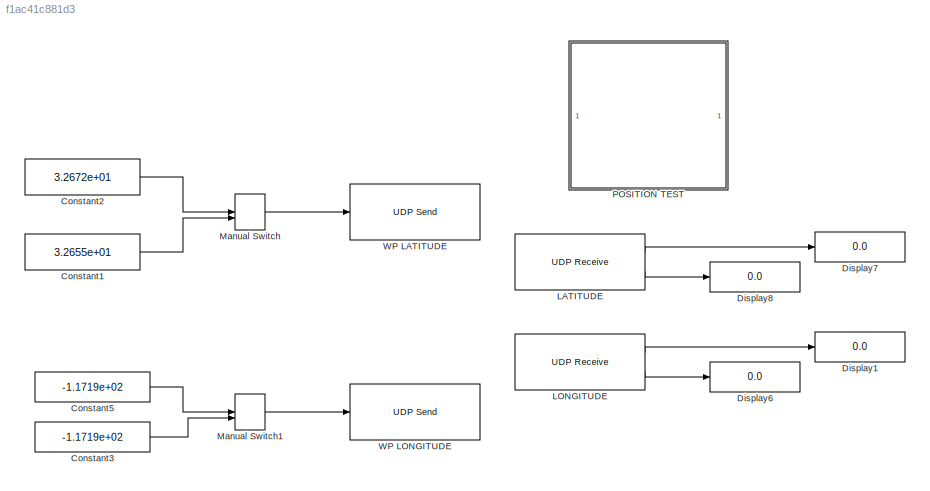
MODEL slx_f1ac41c881d3
KIND model
CONFIG AbsTol = auto
CONFIG EnableMultiTasking = off
CONFIG FixedStep = auto
CONFIG MaxStep = auto
CONFIG MinStep = auto
CONFIG RelTol = 1e-3
CONFIG SampleTimeConstraint = Unconstrained
CONFIG SolverName = VariableStepAuto
CONFIG StartTime = 0.0
CONFIG StopTime = inf
BLOCK [Constant] Constant1
  SampleTime = 0.03
  Value = 3.2655e+01
BLOCK [Constant] Constant2
  SampleTime = 0.03
  Value = 3.2672e+01
BLOCK [Constant] Constant3
  SampleTime = 0.03
  Value = -1.1719e+02
BLOCK [Constant] Constant5
  SampleTime = 0.03
  Value = -1.1719e+02
BLOCK [Display] Display1
  Decimation = 1
  Ports = [1]
BLOCK [Display] Display6
  Decimation = 1
  Ports = [1]
BLOCK [Display] Display7
  Decimation = 1
  Ports = [1]
BLOCK [Display] Display8
  Decimation = 1
  Ports = [1]
BLOCK [Reference] LATITUDE  REF=instrumentlib/UDP Receive
  Ports = [0, 2]
  SourceBlock = instrumentlib/UDP Receive
  SourceProductBaseCode = IC
  SourceType = UDP Receive
BLOCK [Reference] LONGITUDE  REF=instrumentlib/UDP Receive
  Ports = [0, 2]
  SourceBlock = instrumentlib/UDP Receive
  SourceProductBaseCode = IC
  SourceType = UDP Receive
BLOCK [ManualSwitch] Manual Switch
BLOCK [ManualSwitch] Manual Switch1
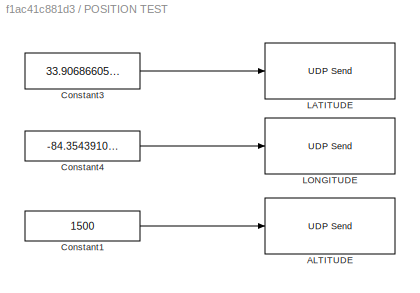
BLOCK [SubSystem] POSITION TEST
  Commented = on
  Ports = []
  RequestExecContextInheritance = off
BLOCK [Reference] POSITION TEST/ALTITUDE  REF=instrumentlib/UDP Send
  Ports = [1]
  SourceBlock = instrumentlib/UDP Send
  SourceProductBaseCode = IC
  SourceType = UDP Send
BLOCK [Constant] POSITION TEST/Constant1
  SampleTime = 0.01
  Value = 1500
BLOCK [Constant] POSITION TEST/Constant3
  SampleTime = 0.01
  Value = 33.906866054481476
BLOCK [Constant] POSITION TEST/Constant4
  SampleTime = 0.01
  Value = -84.35439102319383
BLOCK [Reference] POSITION TEST/LATITUDE  REF=instrumentlib/UDP Send
  Ports = [1]
  SourceBlock = instrumentlib/UDP Send
  SourceProductBaseCode = IC
  SourceType = UDP Send
BLOCK [Reference] POSITION TEST/LONGITUDE  REF=instrumentlib/UDP Send
  Ports = [1]
  SourceBlock = instrumentlib/UDP Send
  SourceProductBaseCode = IC
  SourceType = UDP Send
BLOCK [Reference] WP LATITUDE  REF=instrumentlib/UDP Send
  Ports = [1]
  SourceBlock = instrumentlib/UDP Send
  SourceProductBaseCode = IC
  SourceType = UDP Send
BLOCK [Reference] WP LONGITUDE  REF=instrumentlib/UDP Send
  Ports = [1]
  SourceBlock = instrumentlib/UDP Send
  SourceProductBaseCode = IC
  SourceType = UDP Send
LINE Constant1:1 -> Manual Switch:2
LINE Constant2:1 -> Manual Switch:1
LINE Constant3:1 -> Manual Switch1:2
LINE Constant5:1 -> Manual Switch1:1
LINE LATITUDE:1 -> Display7:1
LINE LATITUDE:2 -> Display8:1
LINE LONGITUDE:1 -> Display1:1
LINE LONGITUDE:2 -> Display6:1
LINE Manual Switch1:1 -> WP LONGITUDE:1
LINE Manual Switch:1 -> WP LATITUDE:1
LINE POSITION TEST/Constant1:1 -> POSITION TEST/ALTITUDE:1
LINE POSITION TEST/Constant3:1 -> POSITION TEST/LATITUDE:1
LINE POSITION TEST/Constant4:1 -> POSITION TEST/LONGITUDE:1
